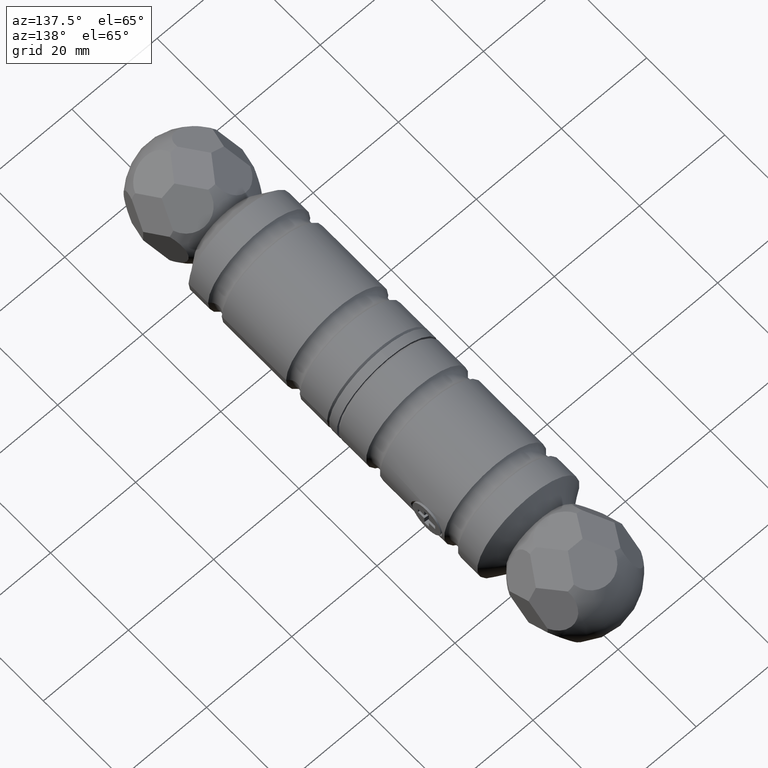
[diagram: clean part render]
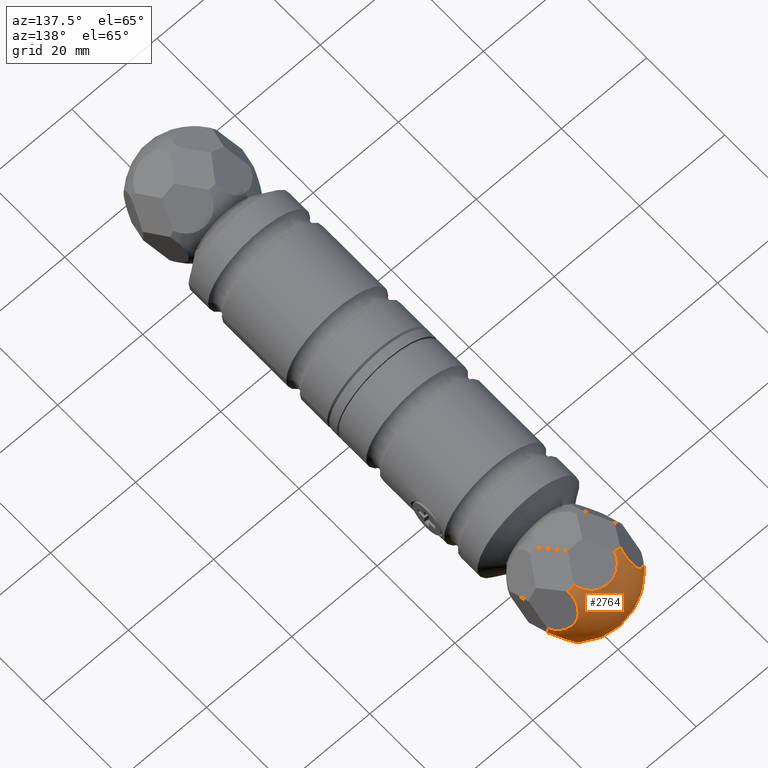
[diagram: same view with one face highlighted and labeled with its STEP entity id]
A machine part, auxiliary view. The second image highlights one B-rep face of the part: STEP entity #2764.
In plain terms, the highlighted spherical surface has radius 12 mm.
Its self-contained STEP definition (entity closure, byte-faithful):
#132 = VERTEX_POINT ( 'NONE', #4644 ) ;
#282 = CARTESIAN_POINT ( 'NONE',  ( -5.144817098802763944, 51.74512056941608762, -8.911084610775720449 ) ) ;
#372 = VERTEX_POINT ( 'NONE', #3979 ) ;
#811 = VERTEX_POINT ( 'NONE', #8207 ) ;
#1089 = CIRCLE ( 'NONE', #11227, 4.908920451586067379 ) ;
#1119 = CIRCLE ( 'NONE', #2681, 4.908920451586054945 ) ;
#1212 = AXIS2_PLACEMENT_3D ( 'NONE', #10437, #11395, #8470 ) ;
#1541 = EDGE_CURVE ( 'NONE', #12768, #2770, #2042, .T. ) ;
#1641 = CARTESIAN_POINT ( 'NONE',  ( -9.890892980903208453, 52.84065305851196115, 4.768470824849223355 ) ) ;
#1813 = DIRECTION ( 'NONE',  ( 0.8660254037844345998, 3.747089299799806076E-30, 0.5000000000000072164 ) ) ;
#2042 = CIRCLE ( 'NONE', #5472, 4.908920451586067379 ) ;
#2070 = DIRECTION ( 'NONE',  ( -0.8660254037844323793, -1.413527469499994692E-15, -0.5000000000000107692 ) ) ;
#2212 = DIRECTION ( 'NONE',  ( -0.4698463103929634843, -0.3420201433256697121, 0.8137976813493679185 ) ) ;
#2214 = CIRCLE ( 'NONE', #10922, 4.908920451586062050 ) ;
#2269 = CARTESIAN_POINT ( 'NONE',  ( 9.075063361976036802, 52.84065305851193273, -6.181529175150686228 ) ) ;
#2297 = VERTEX_POINT ( 'NONE', #9629 ) ;
#2315 = DIRECTION ( 'NONE',  ( 0.8660254037844397068, 0.000000000000000000, -0.4999999999999981126 ) ) ;
#2487 = CARTESIAN_POINT ( 'NONE',  ( 0.8158296189273945842, 52.84065305851196115, -10.94999999999998685 ) ) ;
#2591 = DIRECTION ( 'NONE',  ( 0.8660254037844363761, 0.000000000000000000, 0.5000000000000041078 ) ) ;
#2681 = AXIS2_PLACEMENT_3D ( 'NONE', #5398, #7570, #4403 ) ;
#2721 = CARTESIAN_POINT ( 'NONE',  ( 9.482978171439592430, 48.00000000000000000, 5.475000000000080469 ) ) ;
#2753 = CIRCLE ( 'NONE', #5682, 4.908920451586058498 ) ;
#2764 = ADVANCED_FACE ( 'NONE', ( #12531 ), #11724, .T. ) ;
#2770 = VERTEX_POINT ( 'NONE', #1641 ) ;
#2787 = CIRCLE ( 'NONE', #10855, 4.908920451586069156 ) ;
#2984 = EDGE_CURVE ( 'NONE', #372, #8171, #2787, .T. ) ;
#3026 = CARTESIAN_POINT ( 'NONE',  ( 5.144817098802950461, 51.74512056941607341, -8.911084610775578341 ) ) ;
#3166 = EDGE_CURVE ( 'NONE', #2297, #12664, #1089, .T. ) ;
#3223 = DIRECTION ( 'NONE',  ( 0.4698463103929465534, -0.3420201433256697676, 0.8137976813493779105 ) ) ;
#3303 = DIRECTION ( 'NONE',  ( 0.4999999999999949485, -1.272174722549999128E-14, 0.8660254037844415942 ) ) ;
#3415 = CARTESIAN_POINT ( 'NONE',  ( -5.144817098802891842, 51.74512056941610183, 8.911084610775587223 ) ) ;
#3618 = ORIENTED_EDGE ( 'NONE', *, *, #3166, .T. ) ;
#3659 = CARTESIAN_POINT ( 'NONE',  ( 7.703719777548943412E-30, 48.00000000000000000, -3.659266894335748121E-30 ) ) ;
#3693 = DIRECTION ( 'NONE',  ( -0.3420201433256695456, -0.9396926207859080948, 3.081487911019576681E-33 ) ) ;
#3827 = CARTESIAN_POINT ( 'NONE',  ( -10.28963419760569487, 51.74512056941608762, -1.203706215242022408E-32 ) ) ;
#3979 = CARTESIAN_POINT ( 'NONE',  ( -0.8158296189271704302, 52.84065305851190431, -10.95000000000001350 ) ) ;
#4085 = AXIS2_PLACEMENT_3D ( 'NONE', #3026, #2212, #2070 ) ;
#4403 = DIRECTION ( 'NONE',  ( -0.4999999999999949485, -2.827054938999998062E-15, -0.8660254037844415942 ) ) ;
#4644 = CARTESIAN_POINT ( 'NONE',  ( -0.8158296189273389620, 52.84065305851193273, 10.94999999999999751 ) ) ;
#4652 = EDGE_CURVE ( 'NONE', #9555, #2770, #1119, .T. ) ;
#4717 = CARTESIAN_POINT ( 'NONE',  ( 10.28963419760569487, 51.74512056941608762, -3.863896950926891930E-30 ) ) ;
#4732 = DIRECTION ( 'NONE',  ( -0.000000000000000000, 4.565411374750538205E-34, 1.000000000000000000 ) ) ;
#4834 = ORIENTED_EDGE ( 'NONE', *, *, #9107, .T. ) ;
#4844 = DIRECTION ( 'NONE',  ( -1.000000000000000000, -8.481164816999995764E-15, -1.060145602124999431E-14 ) ) ;
#4994 = CARTESIAN_POINT ( 'NONE',  ( -9.482978171439521375, 48.00000000000000000, -5.475000000000129319 ) ) ;
#5079 = EDGE_CURVE ( 'NONE', #12768, #8171, #2214, .T. ) ;
#5127 = VERTEX_POINT ( 'NONE', #2269 ) ;
#5320 = CARTESIAN_POINT ( 'NONE',  ( 9.482978171439642168, 48.00000000000000000, -5.474999999999947242 ) ) ;
#5355 = DIRECTION ( 'NONE',  ( 0.8660254037844417052, -0.000000000000000000, -0.4999999999999948930 ) ) ;
#5398 = CARTESIAN_POINT ( 'NONE',  ( -9.482978171439610193, 48.00000000000000000, 5.474999999999963229 ) ) ;
#5472 = AXIS2_PLACEMENT_3D ( 'NONE', #3827, #12040, #3693 ) ;
#5622 = CARTESIAN_POINT ( 'NONE',  ( 0.8158296189272468135, 52.84065305851190431, 10.95000000000001172 ) ) ;
#5682 = AXIS2_PLACEMENT_3D ( 'NONE', #2721, #1813, #12834 ) ;
#5840 = DIRECTION ( 'NONE',  ( 0.5000000000000133227, -8.481164816999981564E-15, -0.8660254037844309360 ) ) ;
#5850 = CIRCLE ( 'NONE', #9971, 4.908920451586054945 ) ;
#5878 = EDGE_CURVE ( 'NONE', #10673, #132, #9344, .T. ) ;
#5910 = DIRECTION ( 'NONE',  ( -1.060262988517024338E-14, -4.565411374704119338E-34, 1.000000000000000000 ) ) ;
#6241 = VERTEX_POINT ( 'NONE', #2487 ) ;
#6243 = ORIENTED_EDGE ( 'NONE', *, *, #1541, .T. ) ;
#6443 = ORIENTED_EDGE ( 'NONE', *, *, #8520, .F. ) ;
#6621 = CIRCLE ( 'NONE', #4085, 4.908920451586070044 ) ;
#6804 = DIRECTION ( 'NONE',  ( -0.3420201433256695456, 0.9396926207859080948, 0.000000000000000000 ) ) ;
#6973 = EDGE_CURVE ( 'NONE', #10673, #811, #11564, .T. ) ;
#7192 = CARTESIAN_POINT ( 'NONE',  ( -9.075063361975908904, 52.84065305851196115, -6.181529175150861199 ) ) ;
#7339 = DIRECTION ( 'NONE',  ( -0.4698463103929521045, -0.3420201433256697121, -0.8137976813493744688 ) ) ;
#7534 = ORIENTED_EDGE ( 'NONE', *, *, #5079, .F. ) ;
#7570 = DIRECTION ( 'NONE',  ( -0.8660254037844417052, -0.000000000000000000, 0.4999999999999948930 ) ) ;
#8171 = VERTEX_POINT ( 'NONE', #7192 ) ;
#8206 = CIRCLE ( 'NONE', #12597, 4.908920451586048728 ) ;
#8207 = CARTESIAN_POINT ( 'NONE',  ( 9.075063361975983511, 52.84065305851193273, 6.181529175150817679 ) ) ;
#8272 = EDGE_CURVE ( 'NONE', #372, #6241, #12968, .T. ) ;
#8459 = DIRECTION ( 'NONE',  ( -0.8660254037844435926, -1.413527469499994889E-15, 0.4999999999999913958 ) ) ;
#8470 = DIRECTION ( 'NONE',  ( 1.000000000000000000, -5.654109877999982713E-15, 1.766909336874994529E-14 ) ) ;
#8520 = EDGE_CURVE ( 'NONE', #2297, #811, #2753, .T. ) ;
#8852 = ORIENTED_EDGE ( 'NONE', *, *, #8272, .F. ) ;
#8903 = ORIENTED_EDGE ( 'NONE', *, *, #9447, .F. ) ;
#8922 = ORIENTED_EDGE ( 'NONE', *, *, #12386, .T. ) ;
#9102 = ORIENTED_EDGE ( 'NONE', *, *, #6973, .T. ) ;
#9107 = EDGE_CURVE ( 'NONE', #9555, #132, #8206, .T. ) ;
#9344 = CIRCLE ( 'NONE', #10068, 4.908920451586054057 ) ;
#9447 = EDGE_CURVE ( 'NONE', #5127, #12664, #5850, .T. ) ;
#9555 = VERTEX_POINT ( 'NONE', #9663 ) ;
#9629 = CARTESIAN_POINT ( 'NONE',  ( 9.890892980903283060, 52.84065305851190431, 4.768470824849210032 ) ) ;
#9663 = CARTESIAN_POINT ( 'NONE',  ( -9.075063361975960419, 52.84065305851193273, 6.181529175150788369 ) ) ;
#9971 = AXIS2_PLACEMENT_3D ( 'NONE', #5320, #5355, #3303 ) ;
#10068 = AXIS2_PLACEMENT_3D ( 'NONE', #12030, #5910, #4844 ) ;
#10437 = CARTESIAN_POINT ( 'NONE',  ( 1.932953797023629249E-13, 48.00000000000000000, -10.94999999999999929 ) ) ;
#10522 = ORIENTED_EDGE ( 'NONE', *, *, #2984, .T. ) ;
#10531 = DIRECTION ( 'NONE',  ( 0.4698463103929578777, -0.3420201433256697121, -0.8137976813493713601 ) ) ;
#10673 = VERTEX_POINT ( 'NONE', #5622 ) ;
#10800 = CARTESIAN_POINT ( 'NONE',  ( 9.890892980903272402, 52.84065305851190431, -4.768470824849206480 ) ) ;
#10855 = AXIS2_PLACEMENT_3D ( 'NONE', #282, #3223, #8459 ) ;
#10922 = AXIS2_PLACEMENT_3D ( 'NONE', #4994, #10937, #5840 ) ;
#10937 = DIRECTION ( 'NONE',  ( -0.8660254037844310471, -0.000000000000000000, -0.5000000000000132117 ) ) ;
#11172 = ORIENTED_EDGE ( 'NONE', *, *, #4652, .F. ) ;
#11227 = AXIS2_PLACEMENT_3D ( 'NONE', #4717, #12909, #6804 ) ;
#11395 = DIRECTION ( 'NONE',  ( 1.765254609153998899E-14, 4.565411374676094224E-34, -1.000000000000000000 ) ) ;
#11564 = CIRCLE ( 'NONE', #12167, 4.908920451586065603 ) ;
#11724 = SPHERICAL_SURFACE ( 'NONE', #12150, 11.99999999999999822 ) ;
#11788 = ORIENTED_EDGE ( 'NONE', *, *, #5878, .F. ) ;
#11875 = DIRECTION ( 'NONE',  ( 1.000000000000000000, 0.000000000000000000, 0.000000000000000000 ) ) ;
#12014 = CARTESIAN_POINT ( 'NONE',  ( -9.890892980903219112, 52.84065305851190431, -4.768470824849194045 ) ) ;
#12030 = CARTESIAN_POINT ( 'NONE',  ( -1.160987972426142227E-13, 48.00000000000000000, 10.95000000000000817 ) ) ;
#12040 = DIRECTION ( 'NONE',  ( 0.9396926207859082059, -0.3420201433256697676, -1.170965406187439618E-31 ) ) ;
#12150 = AXIS2_PLACEMENT_3D ( 'NONE', #3659, #4732, #11875 ) ;
#12167 = AXIS2_PLACEMENT_3D ( 'NONE', #12499, #7339, #2315 ) ;
#12386 = EDGE_CURVE ( 'NONE', #5127, #6241, #6621, .T. ) ;
#12499 = CARTESIAN_POINT ( 'NONE',  ( 5.144817098802825228, 51.74512056941607341, 8.911084610775651171 ) ) ;
#12531 = FACE_OUTER_BOUND ( 'NONE', #13080, .T. ) ;
#12597 = AXIS2_PLACEMENT_3D ( 'NONE', #3415, #10531, #2591 ) ;
#12664 = VERTEX_POINT ( 'NONE', #10800 ) ;
#12768 = VERTEX_POINT ( 'NONE', #12014 ) ;
#12834 = DIRECTION ( 'NONE',  ( -0.5000000000000073275, 0.000000000000000000, 0.8660254037844344888 ) ) ;
#12909 = DIRECTION ( 'NONE',  ( -0.9396926207859082059, -0.3420201433256697676, -6.162975822039156098E-33 ) ) ;
#12968 = CIRCLE ( 'NONE', #1212, 4.908920451586066491 ) ;
#13080 = EDGE_LOOP ( 'NONE', ( #6443, #3618, #8903, #8922, #8852, #10522, #7534, #6243, #11172, #4834, #11788, #9102 ) ) ;